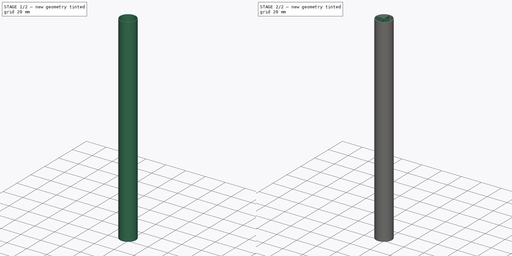
[diagram: build sequence overview — one tinted view per stage of 2, left to right]
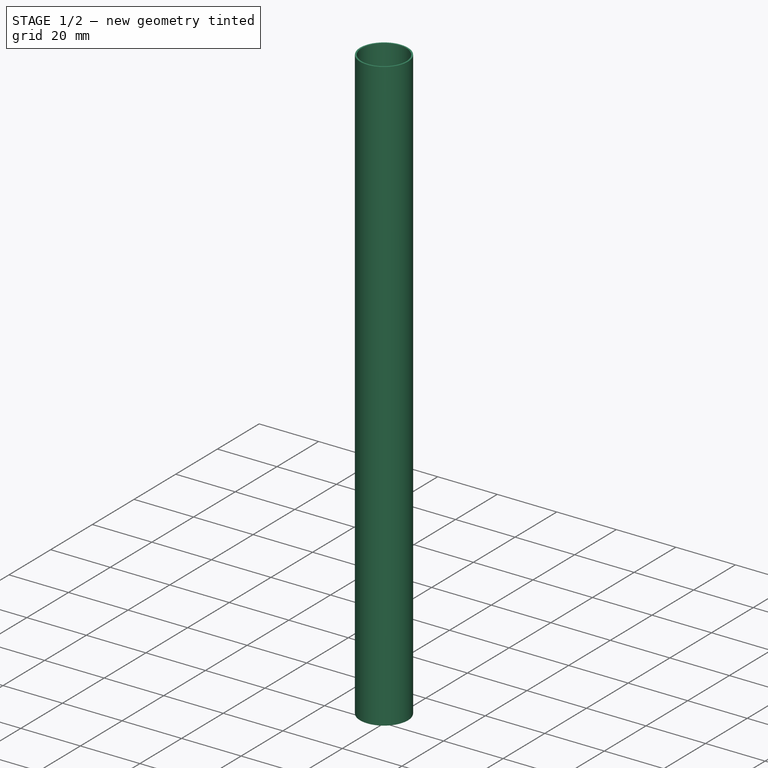
[diagram: stage 1 of 2 — iso view after this stage's code; geometry added in this stage tinted green]
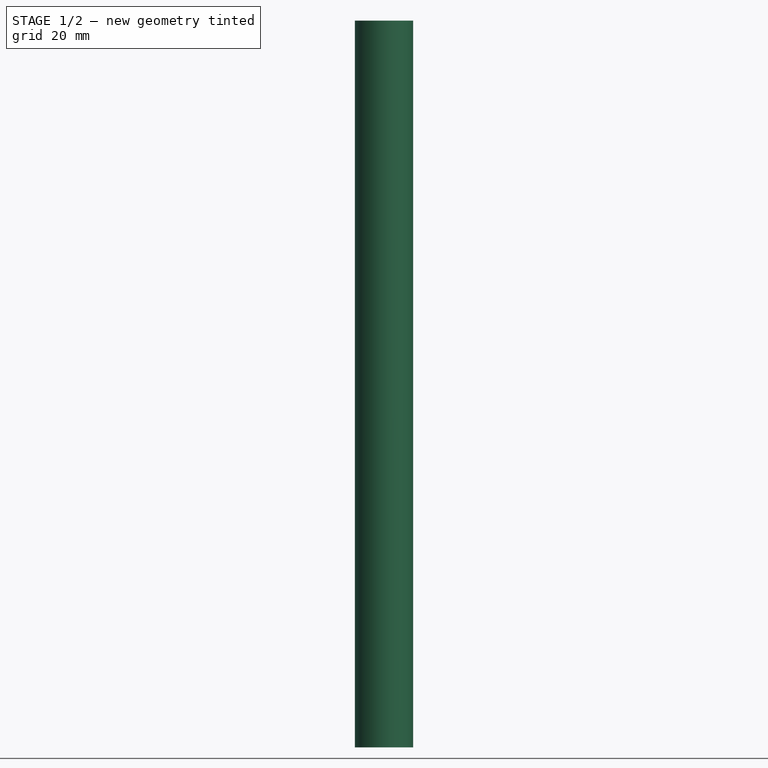
[diagram: stage 1 of 2 — front view after this stage's code; geometry added in this stage tinted green]
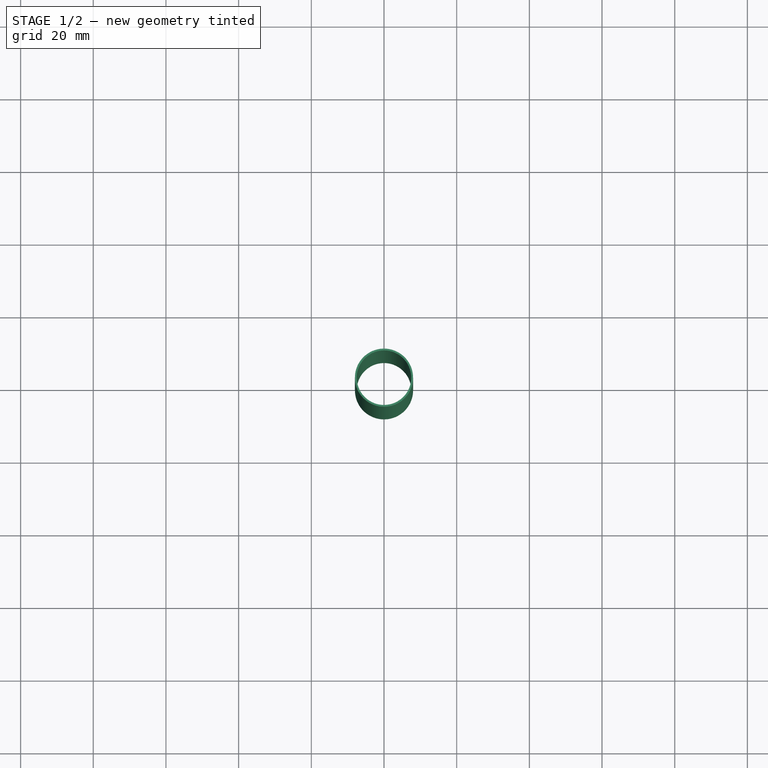
[diagram: stage 1 of 2 — top view after this stage's code; geometry added in this stage tinted green]
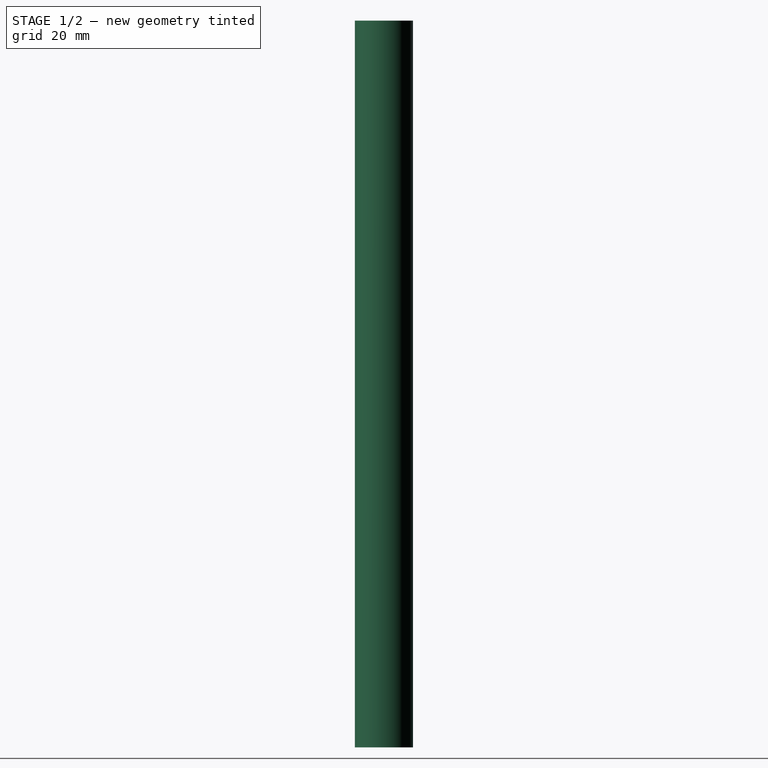
[diagram: stage 1 of 2 — right view after this stage's code; geometry added in this stage tinted green]
FCSTD DOCUMENT  (FreeCAD 0.20R29603 (Git))
Label: stomp_tube
License: All rights reserved
LicenseURL: http://en.wikipedia.org/wiki/All_rights_reserved
objects: Sketcher::SketchObject×3, PartDesign::Pad×2, PartDesign::Pocket×1, PartDesign::Body×1
note: 10 computed .brp shape members not serialized (recipe doc carries the construction recipe); baked Part::Feature solids carry a one-line shape summary decoded from their .brp

FEATURE [Sketcher::SketchObject] Sketch
  FullyConstrained = true
  MapMode = 5
  Support = -> [XY_Plane]
  sketch-geometry (1):
    g0: Circle CenterX=0 CenterY=0 CenterZ=0 NormalX=0 NormalY=0 NormalZ=1 AngleXU=0 Radius=8
  constraints (2):
    c: Coincident(g0,g-1)
    c: Diameter(g0) = 16
FEATURE [PartDesign::Pad] Pad
  Direction = (0,0,1)
  Length = 200
  Length2 = 10
  Profile = -> Sketch
  ReferenceAxis = -> Sketch [N_Axis]
  Type = 0
FEATURE [Sketcher::SketchObject] Sketch001
  FullyConstrained = true
  MapMode = 5
  Placement = pos=(0,0,200) rot=(0,0,1;0rad)
  Support = -> [Pad]
  sketch-geometry (1):
    g0: Circle CenterX=0 CenterY=0 CenterZ=0 NormalX=0 NormalY=0 NormalZ=1 AngleXU=0 Radius=7.5
  constraints (2):
    c: Coincident(g0,g-1)
    c: Diameter(g0) = 15
FEATURE [PartDesign::Pocket] Pocket
  BaseFeature = -> Pad
  Direction = (0,0,-1)
  Length = 200
  Length2 = 5
  Profile = -> Sketch001
  ReferenceAxis = -> Sketch001 [N_Axis]
  Type = 0
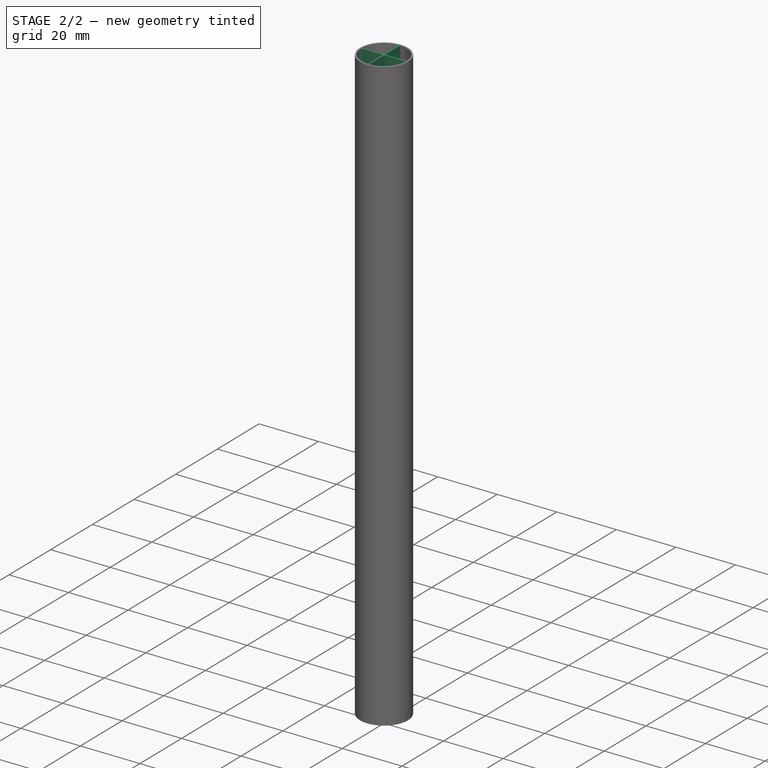
[diagram: stage 2 of 2 — iso view after this stage's code; geometry added in this stage tinted green]
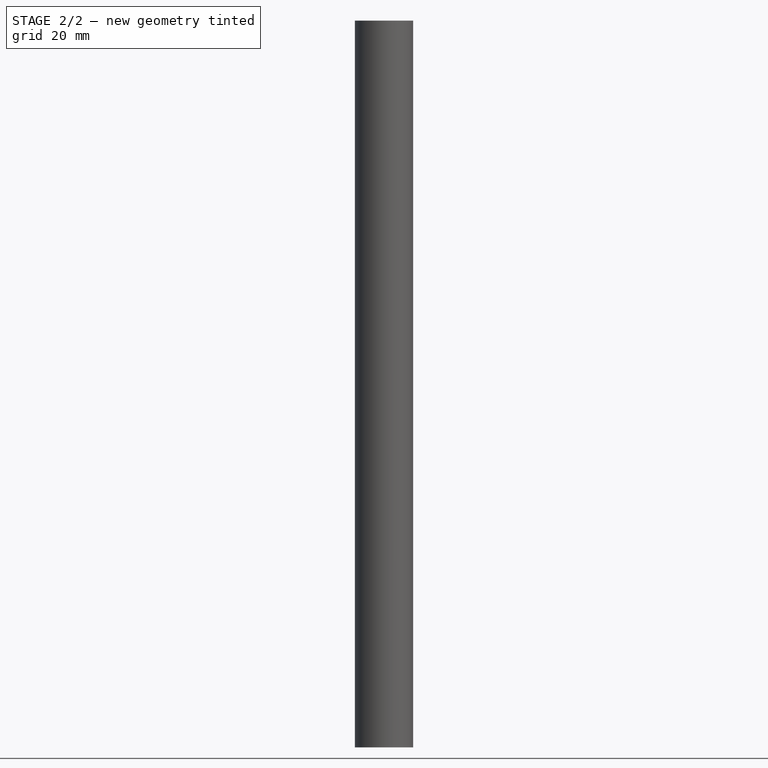
[diagram: stage 2 of 2 — front view after this stage's code; geometry added in this stage tinted green]
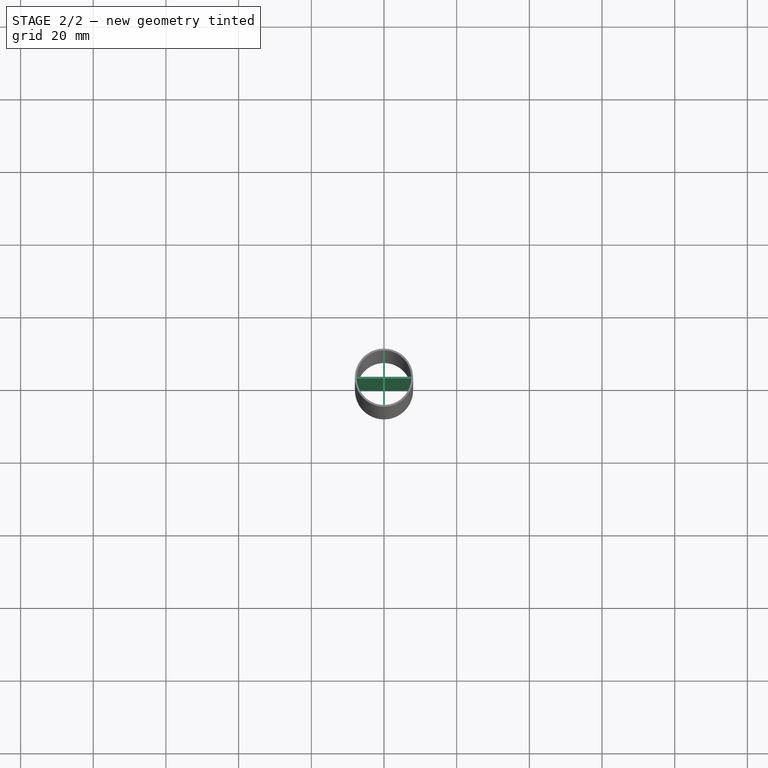
[diagram: stage 2 of 2 — top view after this stage's code; geometry added in this stage tinted green]
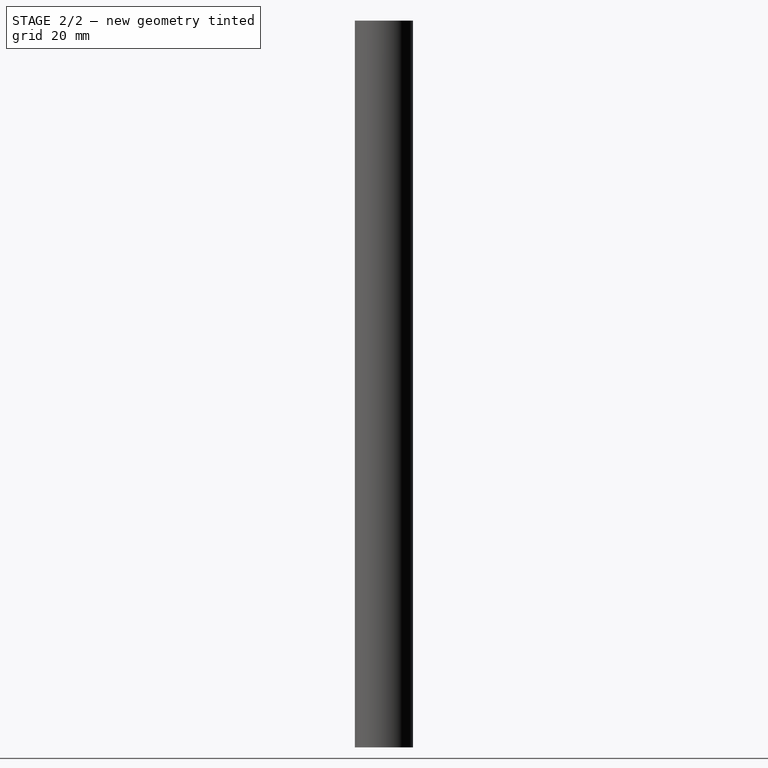
[diagram: stage 2 of 2 — right view after this stage's code; geometry added in this stage tinted green]
FEATURE [Sketcher::SketchObject] Sketch002
  FullyConstrained = false
  MapMode = 5
  Placement = pos=(0,0,200) rot=(0,0,1;0rad)
  Support = -> [Pocket]
  sketch-geometry (16):
    g0: LineSegment StartX=-0.25 StartY=7.75 StartZ=0 EndX=0.25 EndY=7.75 EndZ=0
    g1: LineSegment StartX=0.25 StartY=7.75 StartZ=0 EndX=0.25 EndY=0.25 EndZ=0
    g2: LineSegment StartX=0.25 StartY=-7.75 StartZ=0 EndX=-0.25 EndY=-7.75 EndZ=0
    g3: LineSegment StartX=-0.25 StartY=-7.75 StartZ=0 EndX=-0.25 EndY=-0.25 EndZ=0
    g4: LineSegment StartX=-7.75 StartY=0.25 StartZ=0 EndX=-0.25 EndY=0.25 EndZ=0
    g5: LineSegment StartX=7.75 StartY=0.25 StartZ=0 EndX=7.75 EndY=-0.25 EndZ=0
    g6: LineSegment StartX=7.75 StartY=-0.25 StartZ=0 EndX=0.25 EndY=-0.25 EndZ=0
    g7: LineSegment StartX=-7.75 StartY=-0.25 StartZ=0 EndX=-7.75 EndY=0.25 EndZ=0
    g8: GeomPoint X=-0.469806 Y=-0.25 Z=0
    g9: GeomPoint X=0.25 Y=-0.25 Z=0
    g10: GeomPoint X=0.25 Y=0.25 Z=0
    g11: GeomPoint X=-0.25 Y=0.25 Z=0
    g12: LineSegment StartX=-0.25 StartY=0.25 StartZ=0 EndX=-0.25 EndY=7.75 EndZ=0
    g13: LineSegment StartX=0.25 StartY=0.25 StartZ=0 EndX=7.75 EndY=0.25 EndZ=0
    g14: LineSegment StartX=0.25 StartY=-0.25 StartZ=0 EndX=0.25 EndY=-7.75 EndZ=0
    g15: LineSegment StartX=-0.25 StartY=-0.25 StartZ=0 EndX=-7.75 EndY=-0.25 EndZ=0
  constraints (35):
    c: Coincident(g0,g1)
    c: Coincident(g14,g2)
    c: Coincident(g2,g3)
    c: Coincident(g12,g0)
    c: Vertical(g1)
    c: Vertical(g3)
    c: Coincident(g13,g5)
    c: Coincident(g5,g6)
    c: Coincident(g15,g7)
    c: Coincident(g7,g4)
    c: Horizontal(g4)
    c: Horizontal(g6)
    c: DistanceX(g4,g13) = 15.5
    c: Equal(g7,g2)
    c: DistanceY(g5,g5) = 0.5
    c: PointOnObject(g8,g6)
    c: PointOnObject(g9,g1)
    c: PointOnObject(g10,g1)
    c: PointOnObject(g11,g3)
    c: PointOnObject(g11,g4)
    c: PointOnObject(g10,g4)
    c: PointOnObject(g9,g6)
    c: Coincident(g4,g12)
    c: Coincident(g1,g13)
    c: Coincident(g6,g14)
    c: Coincident(g15,g3)
    c: Symmetric(g4,g1,g-2)
    c: Symmetric(g3,g6,g-2)
    c: Symmetric(g7,g4,g-1)
    c: Symmetric(g5,g5,g-1)
    c: Symmetric(g2,g2,g-2)
    c: Symmetric(g0,g0,g-2)
    c: Symmetric(g4,g5,g-2)
    c: Symmetric(g2,g0,g-1)
    c: DistanceY(g2,g0) = 15.5
FEATURE [PartDesign::Pad] Pad001
  BaseFeature = -> Pocket
  Direction = (0,0,1)
  Length = 200
  Length2 = 10
  Profile = -> Sketch002
  ReferenceAxis = -> Sketch002 [N_Axis]
  Reversed = true
  Type = 0
FEATURE [PartDesign::Body] Body
  Group = -> [Sketch,Pad,Sketch001,Pocket,Sketch002,Pad001]
  Origin = -> Origin
  Tip = -> Pad001
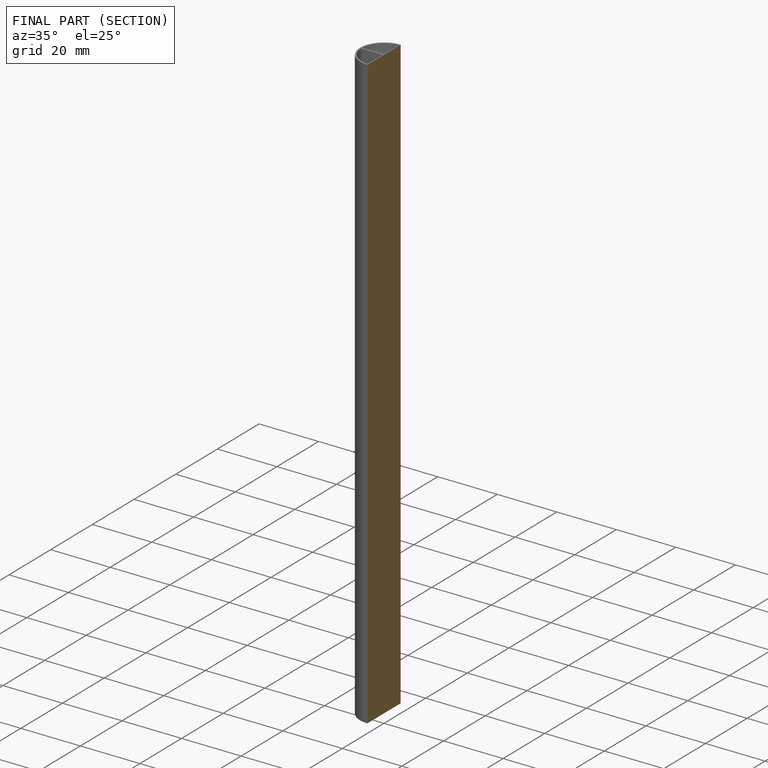
[diagram: finished part — half-section view (interior)]
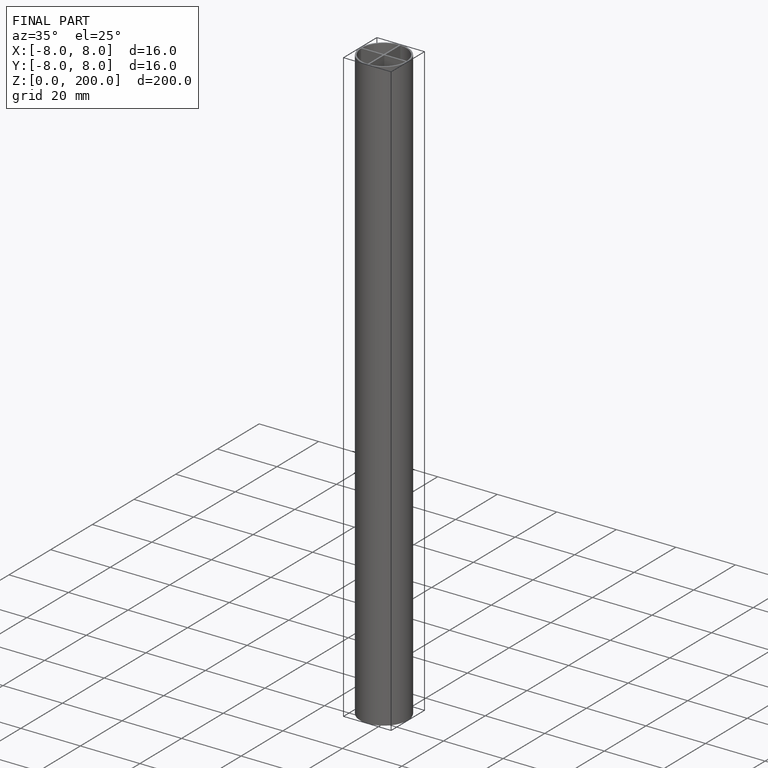
[diagram: finished part — iso view with bounding-box wireframe]
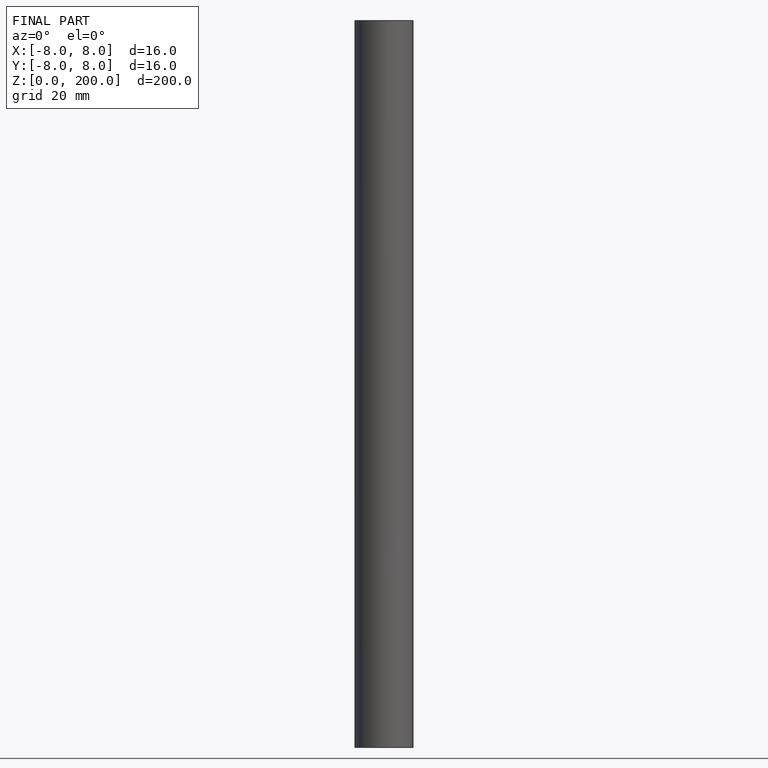
[diagram: finished part — front view with bounding-box wireframe]
